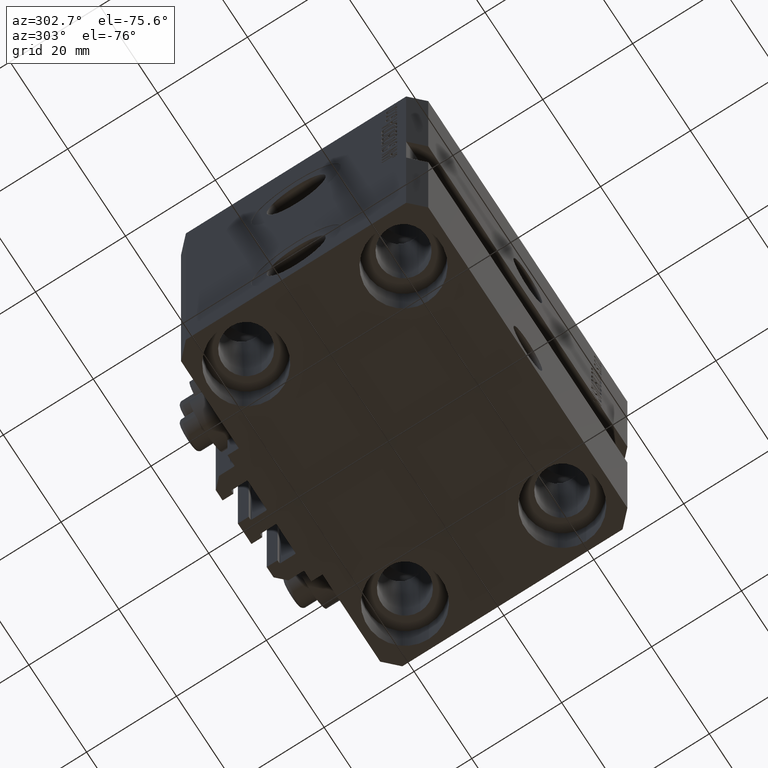
[diagram: clean part render]
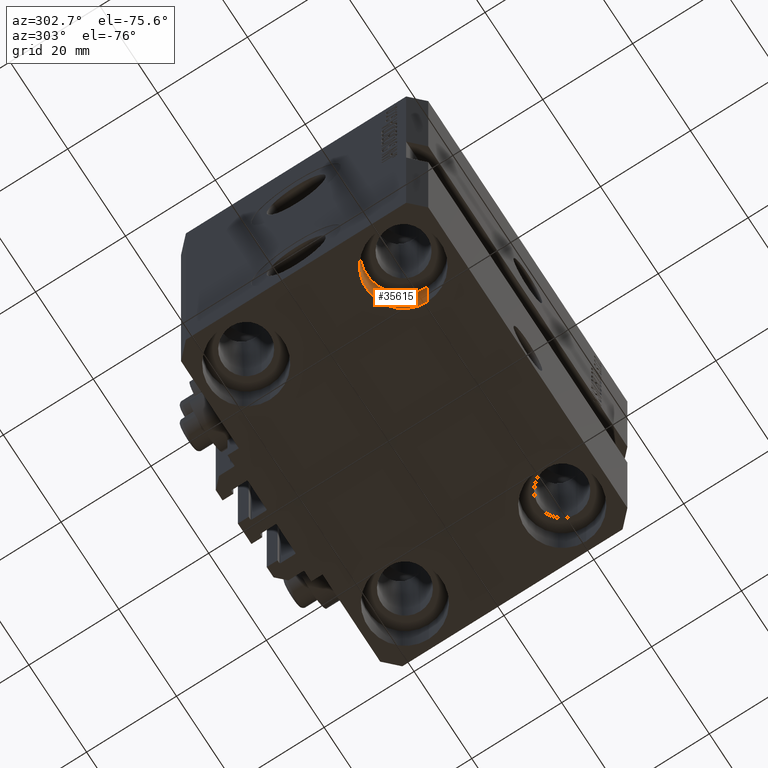
[diagram: same view with one face highlighted and labeled with its STEP entity id]
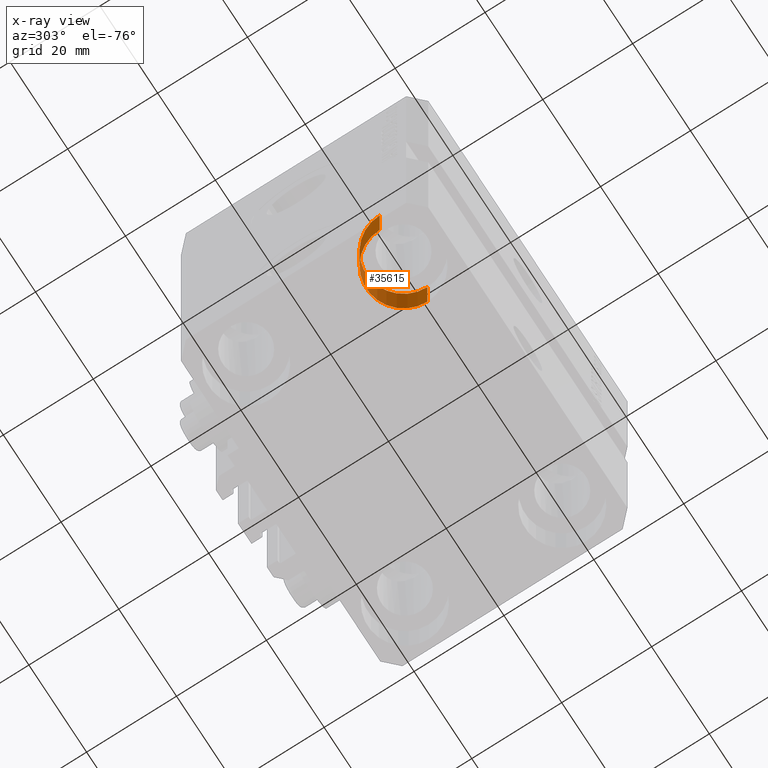
[diagram: x-ray of the same camera — body ghosted, the highlighted face saturated]
A machine part, auxiliary view. The second image highlights one B-rep face of the part: STEP entity #35615.
The next image is the same camera in x-ray: the body ghosted, the highlighted face saturated — about 0% of this face is hidden behind the body in this view.
In plain terms, the highlighted cylindrical surface (partial cylindrical patch) has radius 8.25 mm, axis along (-0, -0, -1).
Its self-contained STEP definition (entity closure, byte-faithful):
#2073 = VECTOR ( 'NONE', #29231, 1000.000000000000000 ) ;
#2994 = DIRECTION ( 'NONE',  ( -0.000000000000000000, -0.000000000000000000, 1.000000000000000000 ) ) ;
#3744 = EDGE_CURVE ( 'NONE', #21853, #16145, #15664, .T. ) ;
#5153 = CARTESIAN_POINT ( 'NONE',  ( -35.75000000000000711, -17.50000000000000000, -69.00000000000000000 ) ) ;
#7016 = CARTESIAN_POINT ( 'NONE',  ( -27.50000000000000355, -17.50000000000000000, -69.00000000000000000 ) ) ;
#7233 = CARTESIAN_POINT ( 'NONE',  ( -35.75000000000000711, -17.50000000000000000, -69.00000000000000000 ) ) ;
#8086 = CARTESIAN_POINT ( 'NONE',  ( -19.25000000000000355, -17.50000000000000000, -69.00000000000000000 ) ) ;
#8951 = CYLINDRICAL_SURFACE ( 'NONE', #12699, 8.250000000000000000 ) ;
#9556 = ORIENTED_EDGE ( 'NONE', *, *, #9974, .F. ) ;
#9974 = EDGE_CURVE ( 'NONE', #16145, #11061, #12367, .T. ) ;
#10681 = CARTESIAN_POINT ( 'NONE',  ( -19.25000000000000355, -17.50000000000000000, -80.00000000000000000 ) ) ;
#11057 = EDGE_LOOP ( 'NONE', ( #33011, #27598, #20482, #9556 ) ) ;
#11061 = VERTEX_POINT ( 'NONE', #19747 ) ;
#12367 = CIRCLE ( 'NONE', #20691, 8.250000000000000000 ) ;
#12476 = DIRECTION ( 'NONE',  ( -1.000000000000000000, 0.000000000000000000, 0.000000000000000000 ) ) ;
#12699 = AXIS2_PLACEMENT_3D ( 'NONE', #23400, #44922, #12476 ) ;
#13187 = DIRECTION ( 'NONE',  ( 1.000000000000000000, 0.000000000000000000, 0.000000000000000000 ) ) ;
#13687 = VECTOR ( 'NONE', #41221, 1000.000000000000000 ) ;
#15664 = LINE ( 'NONE', #8086, #13687 ) ;
#16145 = VERTEX_POINT ( 'NONE', #10681 ) ;
#19747 = CARTESIAN_POINT ( 'NONE',  ( -35.75000000000000711, -17.50000000000000000, -80.00000000000000000 ) ) ;
#20482 = ORIENTED_EDGE ( 'NONE', *, *, #33378, .T. ) ;
#20691 = AXIS2_PLACEMENT_3D ( 'NONE', #37828, #41850, #13187 ) ;
#21853 = VERTEX_POINT ( 'NONE', #35121 ) ;
#23366 = EDGE_CURVE ( 'NONE', #21853, #35029, #29321, .T. ) ;
#23400 = CARTESIAN_POINT ( 'NONE',  ( -27.50000000000000355, -17.50000000000000000, -69.00000000000000000 ) ) ;
#25022 = DIRECTION ( 'NONE',  ( 1.000000000000000000, 0.000000000000000000, 0.000000000000000000 ) ) ;
#27598 = ORIENTED_EDGE ( 'NONE', *, *, #23366, .T. ) ;
#29231 = DIRECTION ( 'NONE',  ( -0.000000000000000000, -0.000000000000000000, -1.000000000000000000 ) ) ;
#29321 = CIRCLE ( 'NONE', #36118, 8.250000000000000000 ) ;
#33009 = LINE ( 'NONE', #7233, #2073 ) ;
#33011 = ORIENTED_EDGE ( 'NONE', *, *, #3744, .F. ) ;
#33378 = EDGE_CURVE ( 'NONE', #35029, #11061, #33009, .T. ) ;
#35029 = VERTEX_POINT ( 'NONE', #5153 ) ;
#35121 = CARTESIAN_POINT ( 'NONE',  ( -19.25000000000000355, -17.50000000000000000, -69.00000000000000000 ) ) ;
#35615 = ADVANCED_FACE ( 'NONE', ( #40899 ), #8951, .F. ) ;
#36118 = AXIS2_PLACEMENT_3D ( 'NONE', #7016, #2994, #25022 ) ;
#37828 = CARTESIAN_POINT ( 'NONE',  ( -27.50000000000000355, -17.50000000000000000, -80.00000000000000000 ) ) ;
#40899 = FACE_OUTER_BOUND ( 'NONE', #11057, .T. ) ;
#41221 = DIRECTION ( 'NONE',  ( -0.000000000000000000, -0.000000000000000000, -1.000000000000000000 ) ) ;
#41850 = DIRECTION ( 'NONE',  ( -0.000000000000000000, -0.000000000000000000, 1.000000000000000000 ) ) ;
#44922 = DIRECTION ( 'NONE',  ( -0.000000000000000000, -0.000000000000000000, -1.000000000000000000 ) ) ;